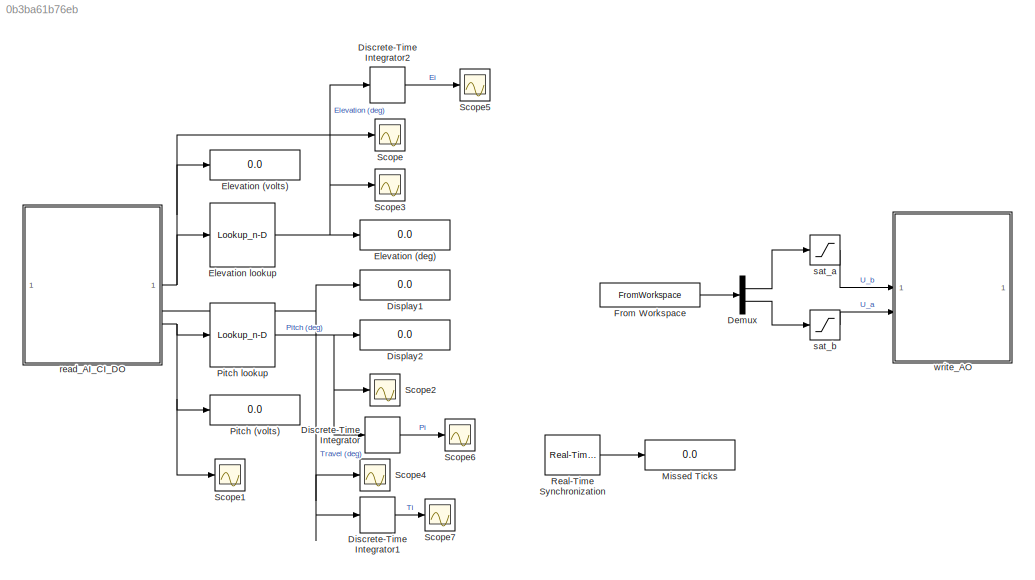
MODEL slx_0b3ba61b76eb
KIND model
CONFIG AbsTol = auto
CONFIG EnableMultiTasking = off
CONFIG FixedStep = Ts
CONFIG MaxStep = 0.015
CONFIG MinStep = auto
CONFIG RelTol = 1e-3
CONFIG SampleTimeConstraint = Unconstrained
CONFIG SolverName = FixedStepAuto
CONFIG StartTime = 0.0
CONFIG StopFcn = stopHeli_allTasks\ndaqreset
CONFIG StopTime = tsim
WORKSPACE source: external: MAT-File  (data not in archive)
BLOCK [Lookup_n-D]  Pitch lookup
  BreakpointsForDimension1 = PitchAxisData.Var2
  InputPortMap = u0
  InternalRulePriority = Speed
  LookupTableObject = PitchAxisData
  NumberOfTableDimensions = 1
  RndMeth = Simplest
  Table = PitchAxisData.Var1
BLOCK [Demux] Demux
  Outputs = 2
BLOCK [DiscreteIntegrator] Discrete-Time Integrator
  ICPrevOutput = DiscIntNeverNeededParam
  ICPrevScaledInput = DiscIntNeverNeededParam
  InitialConditionSetting = Auto
  SampleTime = Ts
BLOCK [DiscreteIntegrator] Discrete-Time Integrator1
  ICPrevOutput = DiscIntNeverNeededParam
  ICPrevScaledInput = DiscIntNeverNeededParam
  InitialConditionSetting = Auto
  SampleTime = Ts
BLOCK [DiscreteIntegrator] Discrete-Time Integrator2
  ICPrevOutput = DiscIntNeverNeededParam
  ICPrevScaledInput = DiscIntNeverNeededParam
  InitialConditionSetting = Auto
  SampleTime = Ts
BLOCK [Display] Display1
  Decimation = 1
BLOCK [Display] Display2
  Decimation = 1
BLOCK [Display] Elevation (deg)
  Decimation = 1
BLOCK [Display] Elevation (volts)
  Decimation = 1
BLOCK [Lookup_n-D] Elevation lookup
  BreakpointsForDimension1 = ElevAxisData.Var2
  InputPortMap = u0
  InternalRulePriority = Speed
  LookupTableObject = PitchAxisData
  NumberOfTableDimensions = 1
  RndMeth = Simplest
  Table = ElevAxisData.Var1
BLOCK [FromWorkspace] From Workspace
  SampleTime = Ts
  VariableName = uTestts
BLOCK [Display] Missed Ticks
  Decimation = 1
BLOCK [Display] Pitch (volts)
  Decimation = 1
BLOCK [Reference] Real-Time Synchronization  REF=sldrtlib/Real-Time
Synchronization
  SourceBlock = sldrtlib/Real-Time\nSynchronization
  SourceType = Simulink Desktop Real-Time Synchronization
BLOCK [Scope] Scope
  ActiveDisplayYMaximum = 2.1934940167933932
  ActiveDisplayYMinimum = 1.9868510849967642
  Floating = off
  GraphicalSettings = {"Style":{"BackgroundColor":[0.12941176470588237,0.12941176470588237,0.12941176470588237],"AxesColor":[0.07058823529411765,0.07058823529411765,0.07058823529411765],"LabelsColor":[0.8509803921568627,0.8509803921568627,0.8509803921568627],"PreserveColors":false,"Visible":[true],"LineStyle":["-"],"LineWidth":[1.5],"BarWidth":[0.9],"LineColor":["auto"],"LineFaceAlpha":[1],"LineEdgeAlpha":[1],"Marker":...<+2019ch>
  MultipleDisplayCache = [{"MaxYLimMag":7.0518529356777435,"MaxYLimReal":2.1934940167933932,"MinYLimMag":0,"MinYLimReal":1.9868510849967642,"PlotAsMagnitudePhase":false,"ShowGrid":true,"ShowLegend":false,"Title":"%<SignalLabel>","YLabel":""}]
  NumInputPorts = 1
  ScopeFrameLocation = window
  WasSavedAsWebScope = on
  WindowPosition = [683.000000,162.000000,1057.000000,659.000000,]
BLOCK [Scope] Scope1
  ActiveDisplayYMaximum = 2.568402255752348
  ActiveDisplayYMinimum = 0.89176071528553269
  DataLoggingVariableName = ScopeData1
  Floating = off
  GraphicalSettings = {"Style":{"BackgroundColor":[0.12941176470588237,0.12941176470588237,0.12941176470588237],"AxesColor":[0.07058823529411765,0.07058823529411765,0.07058823529411765],"LabelsColor":[0.8509803921568627,0.8509803921568627,0.8509803921568627],"PreserveColors":false,"Visible":[true],"LineStyle":["-"],"LineWidth":[1.5],"BarWidth":[0.9],"LineColor":["auto"],"LineFaceAlpha":[1],"LineEdgeAlpha":[1],"Marker":...<+2349ch>
  MultipleDisplayCache = [{"MaxYLimMag":2.52774226188194,"MaxYLimReal":2.568402255752348,"MinYLimMag":2.5114696670789272,"MinYLimReal":0.89176071528553269,"PlotAsMagnitudePhase":false,"ShowGrid":true,"ShowLegend":false,"Title":"%<SignalLabel>","YLabel":""}]
  NumInputPorts = 1
  ScopeFrameLocation = window
  WasSavedAsWebScope = on
  WindowPosition = [483.000000,220.000000,1255.000000,611.000000,]
BLOCK [Scope] Scope2
  ActiveDisplayYMaximum = 16.21355916098214
  ActiveDisplayYMinimum = -12.003455637488393
  DataLoggingVariableName = ScopeData2
  Floating = off
  GraphicalSettings = {"AxesScalingProperties":{"AlignXAxis":"Center","AlignYAxis":"Center","AutoScaleXAxisLimits":false,"AxesScaling":"Manual","AxesScalingNumUpdates":10,"ExpandOnly":true,"ScaleAxesLimitsAtStop":false,"XAxisDataRange":100,"YAxisDataRange":80},"DisplayProperties":{"ColorOrder":["auto","auto","auto","auto","auto","auto","auto","auto","auto","auto","auto","auto","auto","auto","auto","auto","auto","auto",...<+2012ch>
  MultipleDisplayCache = [{"MaxYLimMag":21.708604010101855,"MaxYLimReal":16.21355916098214,"MinYLimMag":0,"MinYLimReal":-12.003455637488393,"PlotAsMagnitudePhase":false,"ShowGrid":true,"ShowLegend":false,"Title":"%<SignalLabel>","YLabel":""}]
  NumInputPorts = 1
  ScopeFrameLocation = window
  WasSavedAsWebScope = on
  WindowPosition = [680.000000,330.000000,560.000000,420.000000,]
BLOCK [Scope] Scope3
  ActiveDisplayYMaximum = -24.318243691799278
  ActiveDisplayYMinimum = -26.137860483196686
  DataLoggingVariableName = ScopeData3
  Floating = off
  GraphicalSettings = {"Style":{"BackgroundColor":[0.12941176470588237,0.12941176470588237,0.12941176470588237],"AxesColor":[0.07058823529411765,0.07058823529411765,0.07058823529411765],"LabelsColor":[0.8509803921568627,0.8509803921568627,0.8509803921568627],"PreserveColors":false,"Visible":[true],"LineStyle":["-"],"LineWidth":[1.5],"BarWidth":[0.9],"LineColor":["auto"],"LineFaceAlpha":[1],"LineEdgeAlpha":[1],"Marker":...<+2017ch>
  MultipleDisplayCache = [{"MaxYLimMag":21.747825821326288,"MaxYLimReal":-24.318243691799278,"MinYLimMag":0,"MinYLimReal":-26.137860483196686,"PlotAsMagnitudePhase":false,"ShowGrid":true,"ShowLegend":false,"Title":"%<SignalLabel>","YLabel":""}]
  NumInputPorts = 1
  ScopeFrameLocation = window
  WasSavedAsWebScope = on
  WindowPosition = [-1420.000000,376.000000,560.000000,420.000000,]
BLOCK [Scope] Scope4
  ActiveDisplayYMaximum = 4.3689375234098868
  ActiveDisplayYMinimum = -3.5457416169231357
  DataLoggingVariableName = ScopeData4
  Floating = off
  GraphicalSettings = {"AxesScalingProperties":{"AlignXAxis":"Center","AlignYAxis":"Center","AutoScaleXAxisLimits":false,"AxesScaling":"Manual","AxesScalingNumUpdates":10,"ExpandOnly":true,"ScaleAxesLimitsAtStop":false,"XAxisDataRange":100,"YAxisDataRange":80},"DisplayProperties":{"ColorOrder":["auto","auto","auto","auto","auto","auto","auto","auto","auto","auto","auto","auto","auto","auto","auto","auto","auto","auto",...<+1920ch>
  MultipleDisplayCache = [{"MaxYLimMag":10,"MaxYLimReal":4.3689375234098868,"MinYLimMag":0,"MinYLimReal":-3.5457416169231357,"PlotAsMagnitudePhase":false,"ShowGrid":true,"ShowLegend":false,"Title":"%<SignalLabel>","YLabel":""}]
  NumInputPorts = 1
  ScopeFrameLocation = window
  WasSavedAsWebScope = on
  WindowPosition = [680.000000,330.000000,560.000000,420.000000,]
BLOCK [Scope] Scope5
  ActiveDisplayYMaximum = 101.7705588435243
  ActiveDisplayYMinimum = -408.352580205493
  DataLoggingVariableName = ScopeData5
  Floating = off
  GraphicalSettings = {"AxesScalingProperties":{"AlignXAxis":"Center","AlignYAxis":"Center","AutoScaleXAxisLimits":false,"AxesScaling":"Manual","AxesScalingNumUpdates":10,"ExpandOnly":true,"ScaleAxesLimitsAtStop":false,"XAxisDataRange":100,"YAxisDataRange":80},"DisplayProperties":{"ColorOrder":["auto","auto","auto","auto","auto","auto","auto","auto","auto","auto","auto","auto","auto","auto","auto","auto","auto","auto",...<+1996ch>
  MultipleDisplayCache = [{"MaxYLimMag":281.85422039999492,"MaxYLimReal":101.7705588435243,"MinYLimMag":0,"MinYLimReal":-408.352580205493,"PlotAsMagnitudePhase":false,"ShowGrid":true,"ShowLegend":false,"Title":"%<SignalLabel>","YLabel":""}]
  NumInputPorts = 1
  ScopeFrameLocation = window
  WasSavedAsWebScope = on
  WindowPosition = [-1085.000000,461.000000,560.000000,420.000000,]
BLOCK [Scope] Scope6
  DataLoggingVariableName = ScopeData6
  Floating = off
  GraphicalSettings = {"GraphicalSettings":{"LegacySettings":true,"Style":{"Style":{"PlotType":"Auto"}}}}
  NumInputPorts = 1
  WasSavedAsWebScope = on
BLOCK [Scope] Scope7
  DataLoggingVariableName = ScopeData7
  Floating = off
  GraphicalSettings = {"GraphicalSettings":{"LegacySettings":true,"Style":{"Style":{"PlotType":"Auto"}}}}
  NumInputPorts = 1
  WasSavedAsWebScope = on
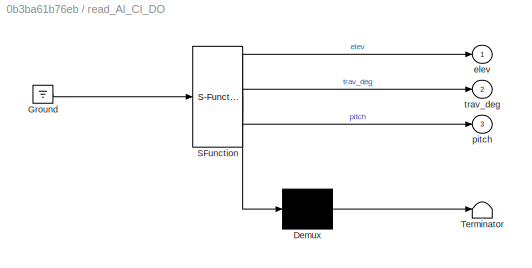
BLOCK [SubSystem] read_AI_CI_DO
  ErrorFcn = Stateflow.Translate.translate
  PermitHierarchicalResolution = ExplicitOnly
  SFBlockType = MATLAB Function
  TreatAsAtomicUnit = on
BLOCK [Demux] read_AI_CI_DO/ Demux 
  Outputs = 1
BLOCK [Ground] read_AI_CI_DO/ Ground 
BLOCK [S-Function] read_AI_CI_DO/ SFunction 
  EnableBusSupport = off
  FunctionName = sf_sfun
  PortCounts = [1 4]
  SFcnIsStateOwnerBlock = off
  SFunctionDeploymentMode = off
  Tag = Stateflow S-Function 7
BLOCK [Terminator] read_AI_CI_DO/ Terminator 
BLOCK [Outport] read_AI_CI_DO/elev
BLOCK [Outport] read_AI_CI_DO/pitch
  Port = 3
BLOCK [Outport] read_AI_CI_DO/trav_deg
  Port = 2
BLOCK [Saturate] sat_a
  LowerLimit = DAC_lim_l
  UpperLimit = DAC_lim_u
BLOCK [Saturate] sat_b
  LowerLimit = DAC_lim_l
  UpperLimit = DAC_lim_u
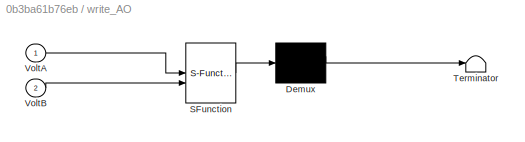
BLOCK [SubSystem] write_AO
  ErrorFcn = Stateflow.Translate.translate
  PermitHierarchicalResolution = ExplicitOnly
  SFBlockType = MATLAB Function
  TreatAsAtomicUnit = on
BLOCK [Demux] write_AO/ Demux 
  Outputs = 1
BLOCK [S-Function] write_AO/ SFunction 
  EnableBusSupport = off
  FunctionName = sf_sfun
  PortCounts = [2 1]
  SFcnIsStateOwnerBlock = off
  SFunctionDeploymentMode = off
  Tag = Stateflow S-Function 2
BLOCK [Terminator] write_AO/ Terminator 
BLOCK [Inport] write_AO/VoltA
BLOCK [Inport] write_AO/VoltB
  Port = 2
NET  Pitch lookup:1 -> Discrete-Time Integrator:1, Display2:1, Scope2:1
LINE Demux:1 -> sat_a:1
LINE Demux:2 -> sat_b:1
LINE Discrete-Time Integrator1:1 -> Scope7:1
LINE Discrete-Time Integrator2:1 -> Scope5:1
LINE Discrete-Time Integrator:1 -> Scope6:1
NET Elevation lookup:1 -> Discrete-Time Integrator2:1, Elevation (deg):1, Scope3:1
LINE From Workspace:1 -> Demux:1
LINE Real-Time Synchronization:1 -> Missed Ticks:1
NET read_AI_CI_DO:1 -> Elevation (volts):1, Elevation lookup:1, Scope:1
NET read_AI_CI_DO:2 -> Discrete-Time Integrator1:1, Display1:1, Scope4:1
NET read_AI_CI_DO:3 ->  Pitch lookup:1, Pitch (volts):1, Scope1:1
LINE sat_a:1 -> write_AO:1
LINE sat_b:1 -> write_AO:2
note: NET lines group one-source signal fan-out (src -> all destinations, sorted); 1:1 wires keep LINE
CHART read_AI_CI_DO states=1 transitions=1
  STATE_LABEL 'eML_blk_kernel()'
  STATE_LABEL "SCRIPT:\nfunction [elev,trav_deg,pitch] = read_AI_CI_DO()\n% The functions from the NI library to read and write inputs and outpus \n% cannot be compiled and we need to use the coder.extrinsic.\n% Functions in common to all \ncoder.extrinsic('NI_DAQmxCreateTask','NI_DAQmxStartTask','assignin');\n%Functions to read AI\ncoder.extrinsic('daq.ni.NIDAQmx.DAQmx_Val_Diff','NI_DAQmxCreateAIVoltageChan',...\n    '...<+2328ch>"
CHART write_AO states=1 transitions=1
  STATE_LABEL 'eML_blk_kernel()'
  STATE_LABEL "SCRIPT:\nfunction write_AO(VoltA,VoltB)\n% The functions from the NI library to write outpus cannot be compiled \n% and we need to use the coder.extrinsic.\n% Functions in common to all  \ncoder.extrinsic('NI_DAQmxCreateTask','NI_DAQmxStartTask', 'assignin');\n% Functions to write AO\ncoder.extrinsic('NI_DAQmxCreateAOVoltageChan','NI_DAQmxWriteAnalogF64',...\n    'daq.ni.NIDAQmx.DAQmx_Val_Volts');\n%% Conf...<+540ch>"
CHART  states=0 transitions=0
CHART  states=0 transitions=0
